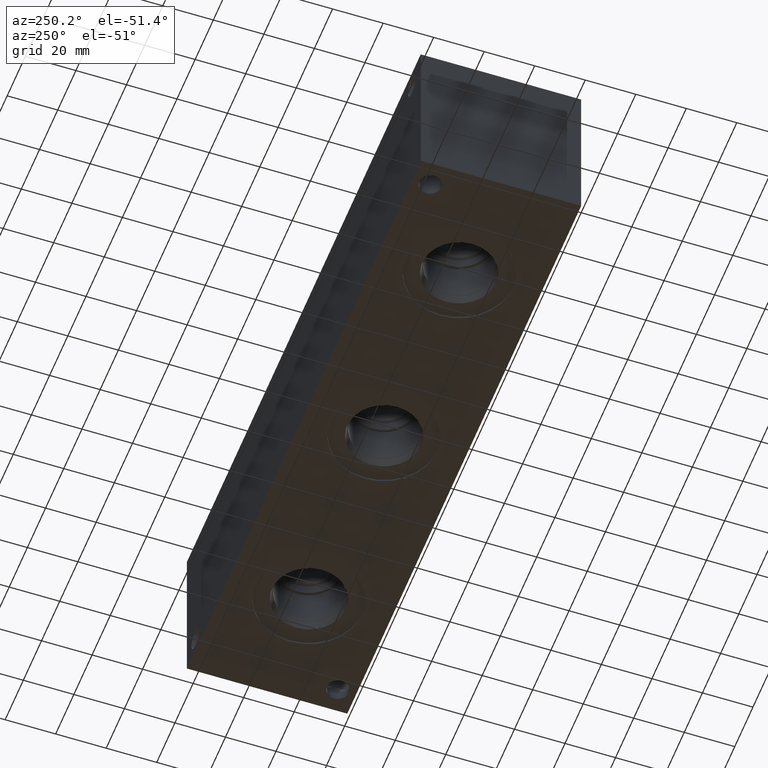
[diagram: clean part render]
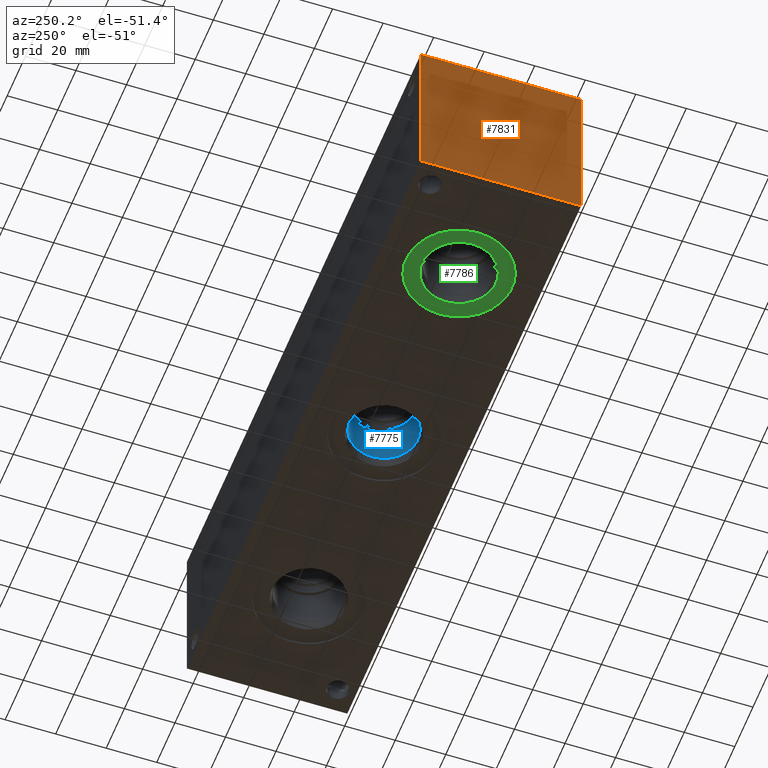
[diagram: same view with three faces highlighted in distinct colors, each labeled with its STEP entity id]
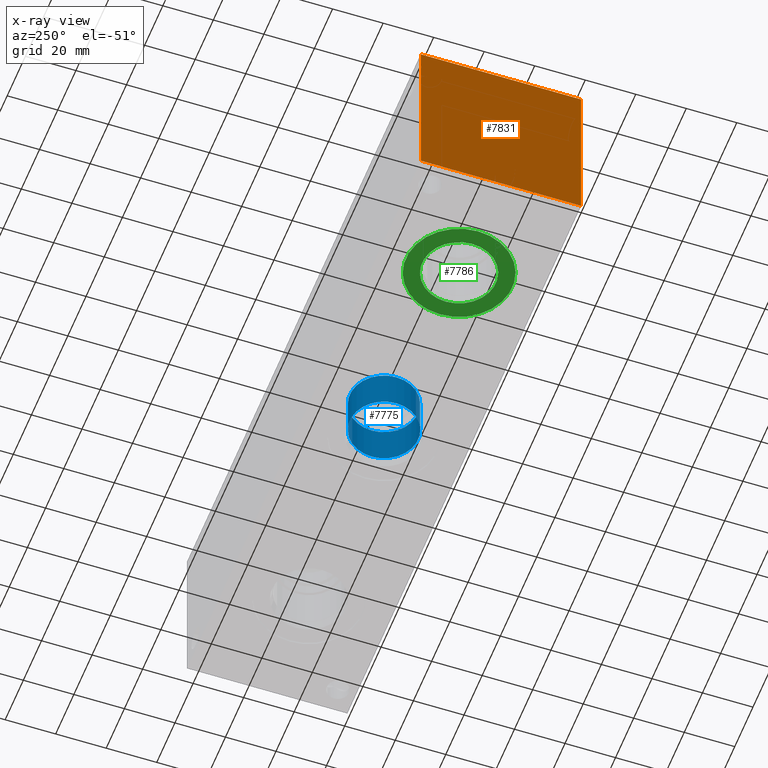
[diagram: x-ray of the same camera — body ghosted, the three highlighted faces saturated]
A machine part, auxiliary view with three faces highlighted in distinct colors.
The next image is the same camera in x-ray (body ghosted, the three faces saturated) — at least one of them is partly hidden behind the body in this view.
Their STEP definitions:

[orange] entity #7831 — the highlighted planar face has unit normal (-1, 0, 0).
#969=FACE_OUTER_BOUND('',#1410,.T.);
#1410=EDGE_LOOP('',(#6858,#6859,#6860,#6861));
#1719=LINE('',#12121,#2461);
#2159=LINE('',#13436,#2901);
#2160=LINE('',#13437,#2902);
#2161=LINE('',#13438,#2903);
#2461=VECTOR('',#8730,10.);
#2901=VECTOR('',#9870,10.);
#2902=VECTOR('',#9871,10.);
#2903=VECTOR('',#9872,10.);
#3231=VERTEX_POINT('',#12114);
#3234=VERTEX_POINT('',#12119);
#3630=VERTEX_POINT('',#13434);
#3631=VERTEX_POINT('',#13435);
#4120=EDGE_CURVE('',#3234,#3231,#1719,.T.);
#4713=EDGE_CURVE('',#3630,#3631,#2159,.T.);
#4714=EDGE_CURVE('',#3631,#3231,#2160,.T.);
#4715=EDGE_CURVE('',#3630,#3234,#2161,.T.);
#6858=ORIENTED_EDGE('',*,*,#4713,.T.);
#6859=ORIENTED_EDGE('',*,*,#4714,.T.);
#6860=ORIENTED_EDGE('',*,*,#4120,.F.);
#6861=ORIENTED_EDGE('',*,*,#4715,.F.);
#7121=PLANE('',#8276);
#7831=ADVANCED_FACE('',(#969),#7121,.T.);
#8276=AXIS2_PLACEMENT_3D('',#13433,#9868,#9869);
#8730=DIRECTION('',(0.,-1.,0.));
#9868=DIRECTION('center_axis',(-1.,0.,0.));
#9869=DIRECTION('ref_axis',(0.,-1.,0.));
#9870=DIRECTION('',(0.,-1.,0.));
#9871=DIRECTION('',(0.,0.,1.));
#9872=DIRECTION('',(0.,0.,1.));
#12114=CARTESIAN_POINT('',(0.,0.,63.5));
#12119=CARTESIAN_POINT('',(0.,63.5,63.5));
#12121=CARTESIAN_POINT('',(0.,63.5,63.5));
#13433=CARTESIAN_POINT('Origin',(0.,63.5,0.));
#13434=CARTESIAN_POINT('',(0.,63.5,0.));
#13435=CARTESIAN_POINT('',(0.,0.,0.));
#13436=CARTESIAN_POINT('',(0.,63.5,0.));
#13437=CARTESIAN_POINT('',(0.,0.,0.));
#13438=CARTESIAN_POINT('',(0.,63.5,0.));

[blue] entity #7775 — the highlighted cylindrical surface (bore or boss wall) has radius 13.5001 mm, axis along (0, 0, -1).
#53=CYLINDRICAL_SURFACE('',#8132,13.5001);
#115=CIRCLE('',#8106,13.5001);
#130=CIRCLE('',#8129,13.5001);
#131=CIRCLE('',#8130,13.5001);
#913=FACE_OUTER_BOUND('',#1345,.T.);
#1345=EDGE_LOOP('',(#6576,#6577,#6578,#6579,#6580));
#2112=LINE('',#13159,#2854);
#2854=VECTOR('',#9535,13.5001);
#3528=VERTEX_POINT('',#13106);
#3543=VERTEX_POINT('',#13152);
#3544=VERTEX_POINT('',#13153);
#4553=EDGE_CURVE('',#3528,#3528,#115,.T.);
#4575=EDGE_CURVE('',#3543,#3544,#130,.T.);
#4576=EDGE_CURVE('',#3544,#3543,#131,.T.);
#4578=EDGE_CURVE('',#3528,#3544,#2112,.T.);
#6576=ORIENTED_EDGE('',*,*,#4553,.T.);
#6577=ORIENTED_EDGE('',*,*,#4578,.T.);
#6578=ORIENTED_EDGE('',*,*,#4575,.F.);
#6579=ORIENTED_EDGE('',*,*,#4576,.F.);
#6580=ORIENTED_EDGE('',*,*,#4578,.F.);
#7775=ADVANCED_FACE('',(#913),#53,.F.);
#8106=AXIS2_PLACEMENT_3D('',#13108,#9474,#9475);
#8129=AXIS2_PLACEMENT_3D('',#13154,#9527,#9528);
#8130=AXIS2_PLACEMENT_3D('',#13155,#9529,#9530);
#8132=AXIS2_PLACEMENT_3D('',#13158,#9533,#9534);
#9474=DIRECTION('center_axis',(0.,0.,-1.));
#9475=DIRECTION('ref_axis',(1.,0.,0.));
#9527=DIRECTION('center_axis',(0.,0.,-1.));
#9528=DIRECTION('ref_axis',(1.,0.,0.));
#9529=DIRECTION('center_axis',(0.,0.,-1.));
#9530=DIRECTION('ref_axis',(1.,0.,0.));
#9533=DIRECTION('center_axis',(0.,0.,-1.));
#9534=DIRECTION('ref_axis',(1.,0.,0.));
#9535=DIRECTION('',(0.,0.,1.));
#13106=CARTESIAN_POINT('',(115.0747,31.75,4.27990000000001));
#13108=CARTESIAN_POINT('Origin',(128.5748,31.75,4.27990000000001));
#13152=CARTESIAN_POINT('',(142.0749,31.75,19.8374));
#13153=CARTESIAN_POINT('',(115.0747,31.75,19.8374));
#13154=CARTESIAN_POINT('Origin',(128.5748,31.75,19.8374));
#13155=CARTESIAN_POINT('Origin',(128.5748,31.75,19.8374));
#13158=CARTESIAN_POINT('Origin',(128.5748,31.75,9.9187));
#13159=CARTESIAN_POINT('',(115.0747,31.75,9.9187));

[green] entity #7786 — the highlighted planar face has unit normal (0, 0, 1).
#146=CIRCLE('',#8156,21.0185);
#147=CIRCLE('',#8157,21.0185);
#148=CIRCLE('',#8159,14.5923);
#149=CIRCLE('',#8160,14.5923);
#249=FACE_BOUND('',#1359,.T.);
#924=FACE_OUTER_BOUND('',#1358,.T.);
#1358=EDGE_LOOP('',(#6628,#6629));
#1359=EDGE_LOOP('',(#6630,#6631));
#3559=VERTEX_POINT('',#13203);
#3560=VERTEX_POINT('',#13205);
#3561=VERTEX_POINT('',#13209);
#3562=VERTEX_POINT('',#13210);
#4600=EDGE_CURVE('',#3559,#3560,#146,.T.);
#4601=EDGE_CURVE('',#3560,#3559,#147,.T.);
#4602=EDGE_CURVE('',#3561,#3562,#148,.T.);
#4603=EDGE_CURVE('',#3562,#3561,#149,.T.);
#6628=ORIENTED_EDGE('',*,*,#4601,.F.);
#6629=ORIENTED_EDGE('',*,*,#4600,.F.);
#6630=ORIENTED_EDGE('',*,*,#4602,.T.);
#6631=ORIENTED_EDGE('',*,*,#4603,.T.);
#7114=PLANE('',#8158);
#7786=ADVANCED_FACE('',(#924,#249),#7114,.F.);
#8156=AXIS2_PLACEMENT_3D('',#13206,#9590,#9591);
#8157=AXIS2_PLACEMENT_3D('',#13207,#9592,#9593);
#8158=AXIS2_PLACEMENT_3D('',#13208,#9594,#9595);
#8159=AXIS2_PLACEMENT_3D('',#13211,#9596,#9597);
#8160=AXIS2_PLACEMENT_3D('',#13212,#9598,#9599);
#9590=DIRECTION('center_axis',(0.,0.,1.));
#9591=DIRECTION('ref_axis',(1.,0.,0.));
#9592=DIRECTION('center_axis',(0.,0.,1.));
#9593=DIRECTION('ref_axis',(1.,0.,0.));
#9594=DIRECTION('center_axis',(0.,0.,1.));
#9595=DIRECTION('ref_axis',(1.,0.,0.));
#9596=DIRECTION('center_axis',(0.,0.,1.));
#9597=DIRECTION('ref_axis',(1.,0.,0.));
#9598=DIRECTION('center_axis',(0.,0.,1.));
#9599=DIRECTION('ref_axis',(1.,0.,0.));
#13203=CARTESIAN_POINT('',(25.0063,31.75,0.7874));
#13205=CARTESIAN_POINT('',(67.0433,31.75,0.7874));
#13206=CARTESIAN_POINT('Origin',(46.0248,31.75,0.7874));
#13207=CARTESIAN_POINT('Origin',(46.0248,31.75,0.7874));
#13208=CARTESIAN_POINT('Origin',(60.6171,31.75,0.7874));
#13209=CARTESIAN_POINT('',(60.6171,31.75,0.7874));
#13210=CARTESIAN_POINT('',(31.4325,31.75,0.787399999999999));
#13211=CARTESIAN_POINT('Origin',(46.0248,31.75,0.7874));
#13212=CARTESIAN_POINT('Origin',(46.0248,31.75,0.7874));